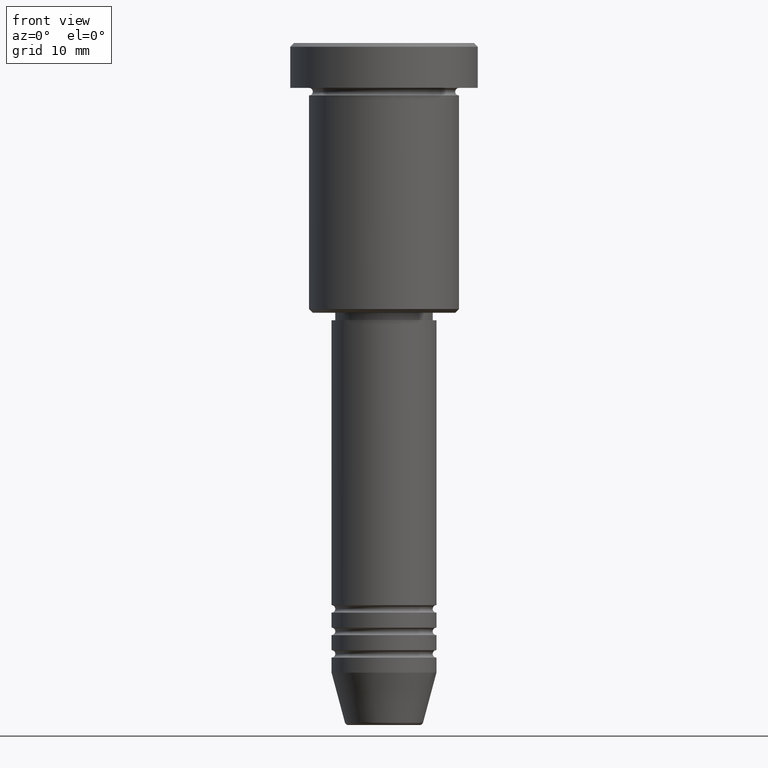
[diagram: clean part render]
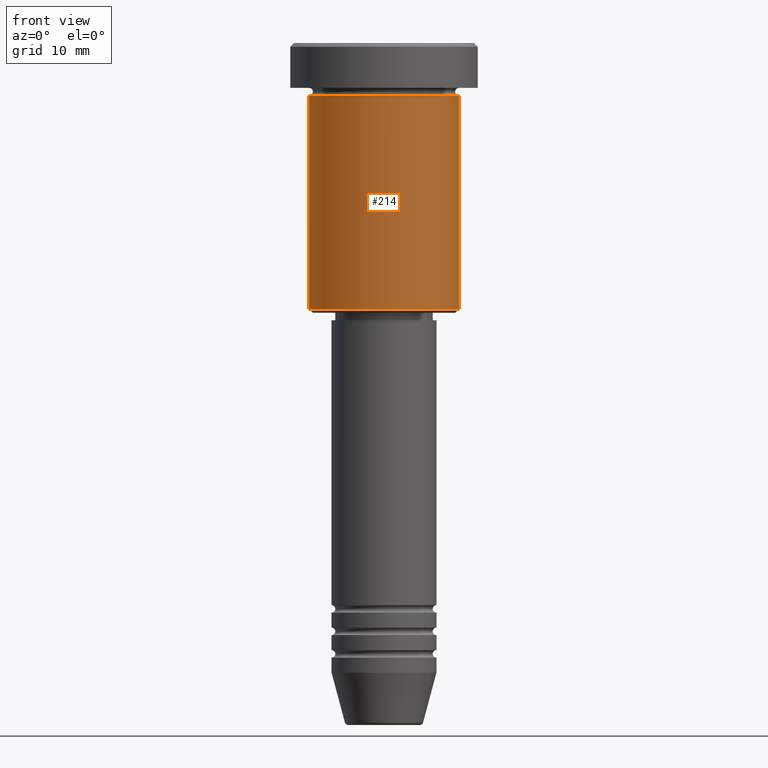
[diagram: same view with one face highlighted and labeled with its STEP entity id]
A machine part, front view. The second image highlights one B-rep face of the part: STEP entity #214.
In plain terms, the highlighted cylindrical surface (partial cylindrical patch) has radius 10 mm, axis along (-0, -0, 1).
Its self-contained STEP definition (entity closure, byte-faithful):
#23 = CIRCLE ( 'NONE', #979, 10.00000000000000000 ) ;
#53 = DIRECTION ( 'NONE',  ( -1.000000000000000000, 0.000000000000000000, 0.000000000000000000 ) ) ;
#95 = FACE_OUTER_BOUND ( 'NONE', #924, .T. ) ;
#171 = DIRECTION ( 'NONE',  ( 1.000000000000000000, 0.000000000000000000, 0.000000000000000000 ) ) ;
#179 = CARTESIAN_POINT ( 'NONE',  ( 0.000000000000000000, 0.000000000000000000, 0.000000000000000000 ) ) ;
#214 = ADVANCED_FACE ( 'NONE', ( #95 ), #997, .T. ) ;
#253 = CARTESIAN_POINT ( 'NONE',  ( -10.00000000000000000, 1.224646799147353256E-15, -35.49999999999999289 ) ) ;
#273 = ORIENTED_EDGE ( 'NONE', *, *, #858, .F. ) ;
#277 = ORIENTED_EDGE ( 'NONE', *, *, #478, .T. ) ;
#382 = VECTOR ( 'NONE', #541, 1000.000000000000000 ) ;
#407 = DIRECTION ( 'NONE',  ( -0.000000000000000000, -0.000000000000000000, 1.000000000000000000 ) ) ;
#442 = CARTESIAN_POINT ( 'NONE',  ( 10.00000000000000000, 0.000000000000000000, 0.000000000000000000 ) ) ;
#478 = EDGE_CURVE ( 'NONE', #1032, #1112, #974, .T. ) ;
#492 = CARTESIAN_POINT ( 'NONE',  ( -10.00000000000000000, 1.224646799147353256E-15, -6.999999999999996447 ) ) ;
#495 = ORIENTED_EDGE ( 'NONE', *, *, #633, .T. ) ;
#510 = CARTESIAN_POINT ( 'NONE',  ( 10.00000000000000000, 0.000000000000000000, -35.49999999999999289 ) ) ;
#541 = DIRECTION ( 'NONE',  ( -0.000000000000000000, -0.000000000000000000, 1.000000000000000000 ) ) ;
#564 = AXIS2_PLACEMENT_3D ( 'NONE', #179, #651, #171 ) ;
#587 = CARTESIAN_POINT ( 'NONE',  ( 0.000000000000000000, 0.000000000000000000, -6.999999999999996447 ) ) ;
#631 = AXIS2_PLACEMENT_3D ( 'NONE', #587, #407, #959 ) ;
#633 = EDGE_CURVE ( 'NONE', #1059, #1032, #23, .T. ) ;
#637 = CARTESIAN_POINT ( 'NONE',  ( -10.00000000000000000, 1.224646799147353256E-15, 0.000000000000000000 ) ) ;
#651 = DIRECTION ( 'NONE',  ( -0.000000000000000000, -0.000000000000000000, 1.000000000000000000 ) ) ;
#858 = EDGE_CURVE ( 'NONE', #1059, #1128, #1167, .T. ) ;
#881 = ORIENTED_EDGE ( 'NONE', *, *, #994, .F. ) ;
#924 = EDGE_LOOP ( 'NONE', ( #273, #495, #277, #881 ) ) ;
#959 = DIRECTION ( 'NONE',  ( 1.000000000000000000, 0.000000000000000000, 0.000000000000000000 ) ) ;
#974 = LINE ( 'NONE', #442, #1145 ) ;
#979 = AXIS2_PLACEMENT_3D ( 'NONE', #1041, #1035, #53 ) ;
#994 = EDGE_CURVE ( 'NONE', #1128, #1112, #1069, .T. ) ;
#997 = CYLINDRICAL_SURFACE ( 'NONE', #564, 10.00000000000000000 ) ;
#1032 = VERTEX_POINT ( 'NONE', #510 ) ;
#1033 = CARTESIAN_POINT ( 'NONE',  ( 10.00000000000000000, 0.000000000000000000, -6.999999999999996447 ) ) ;
#1035 = DIRECTION ( 'NONE',  ( -0.000000000000000000, -0.000000000000000000, 1.000000000000000000 ) ) ;
#1041 = CARTESIAN_POINT ( 'NONE',  ( 0.000000000000000000, 0.000000000000000000, -35.49999999999999289 ) ) ;
#1059 = VERTEX_POINT ( 'NONE', #253 ) ;
#1069 = CIRCLE ( 'NONE', #631, 10.00000000000000000 ) ;
#1076 = DIRECTION ( 'NONE',  ( -0.000000000000000000, -0.000000000000000000, 1.000000000000000000 ) ) ;
#1112 = VERTEX_POINT ( 'NONE', #1033 ) ;
#1128 = VERTEX_POINT ( 'NONE', #492 ) ;
#1145 = VECTOR ( 'NONE', #1076, 1000.000000000000000 ) ;
#1167 = LINE ( 'NONE', #637, #382 ) ;